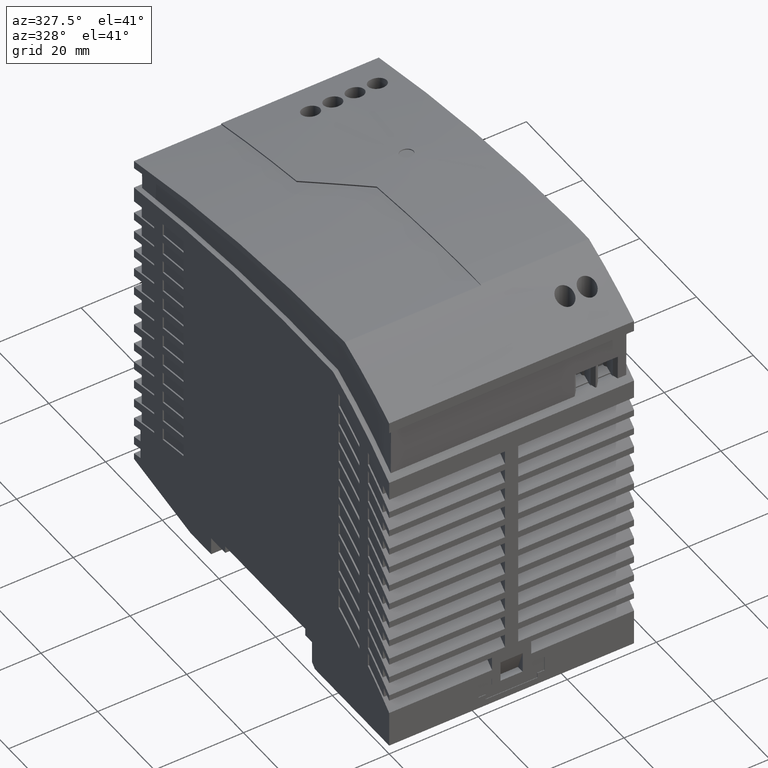
[diagram: clean part render]
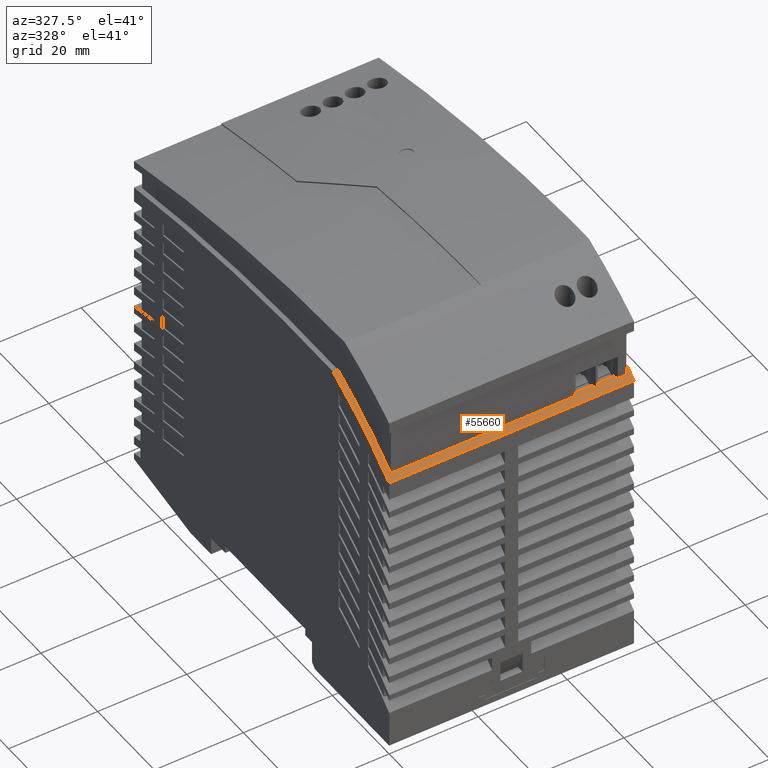
[diagram: same view with one face highlighted and labeled with its STEP entity id]
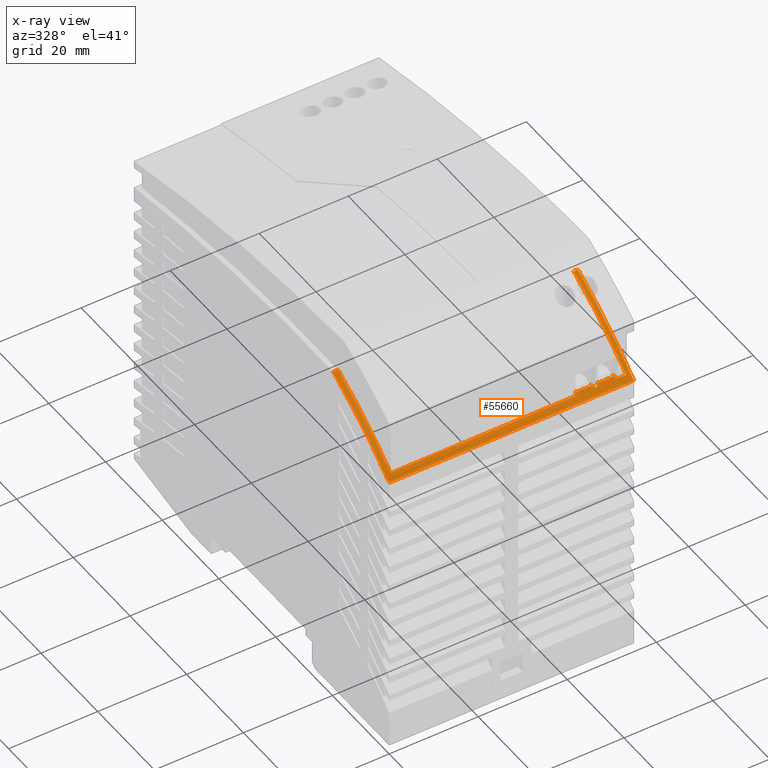
[diagram: x-ray of the same camera — body ghosted, the highlighted face saturated]
A machine part, auxiliary view. The second image highlights one B-rep face of the part: STEP entity #55660.
The next image is the same camera in x-ray: the body ghosted, the highlighted face saturated — about 0% of this face is hidden behind the body in this view.
In plain terms, the highlighted cylindrical surface (partial cylindrical patch) has radius 98.55 mm, axis along (1, 0, 0).
Its self-contained STEP definition (entity closure, byte-faithful):
#19180=CARTESIAN_POINT('',(19.7066423710768,-8.36763282685864,-54.));
#19190=DIRECTION('',(0.,0.,1.));
#19200=DIRECTION('',(-0.455955103889732,0.890002777095051,0.));
#19210=AXIS2_PLACEMENT_3D('',#19180,#19190,#19200);
#19220=CIRCLE('',#19210,98.55);
#19230=CARTESIAN_POINT('',(-25.2277331172548,79.3421408558594,-54.));
#19240=VERTEX_POINT('',#19230);
#19250=CARTESIAN_POINT('',(-45.0015236073532,65.9624132898226,-54.));
#19260=VERTEX_POINT('',#19250);
#19270=EDGE_CURVE('',#19240,#19260,#19220,.T.);
#40340=CARTESIAN_POINT('',(19.7066423710768,-8.36763282685864,1.));
#40350=DIRECTION('',(0.,0.,1.));
#40360=DIRECTION('',(-0.455955103889732,0.890002777095051,0.));
#40370=AXIS2_PLACEMENT_3D('',#40340,#40350,#40360);
#40380=CIRCLE('',#40370,98.55);
#40390=CARTESIAN_POINT('',(-25.2277331172548,79.3421408558594,1.));
#40400=VERTEX_POINT('',#40390);
#40410=CARTESIAN_POINT('',(-45.0015236073532,65.9624132898226,1.));
#40420=VERTEX_POINT('',#40410);
#40430=EDGE_CURVE('',#40400,#40420,#40380,.T.);
#54110=CARTESIAN_POINT('',(19.7066423710768,-8.36763282685864,-54.));
#54120=DIRECTION('',(0.,0.,1.));
#54130=DIRECTION('',(-0.455955103889732,0.890002777095051,0.));
#54140=AXIS2_PLACEMENT_3D('',#54110,#54120,#54130);
#54150=CYLINDRICAL_SURFACE('',#54140,98.55);
#54160=ORIENTED_EDGE('',*,*,#19270,.T.);
#54170=CARTESIAN_POINT('',(-25.2277331172548,79.3421408558593,-54.));
#54180=DIRECTION('',(0.,0.,1.));
#54190=VECTOR('',#54180,1.);
#54200=LINE('',#54170,#54190);
#54210=CARTESIAN_POINT('',(-25.2277331172552,79.3421408558592,
-52.8866936822561));
#54220=VERTEX_POINT('',#54210);
#54230=EDGE_CURVE('',#19240,#54220,#54200,.T.);
#54240=ORIENTED_EDGE('',*,*,#54230,.F.);
#54250=CARTESIAN_POINT('',(19.7066423710768,-8.36763282685864,
-52.8866936822561));
#54260=DIRECTION('',(0.,0.,1.));
#54270=DIRECTION('',(-0.455955103889732,0.890002777095051,0.));
#54280=AXIS2_PLACEMENT_3D('',#54250,#54260,#54270);
#54290=CIRCLE('',#54280,98.55);
#54300=CARTESIAN_POINT('',(-43.8004748452349,66.9911660149067,
-52.8866936822561));
#54310=VERTEX_POINT('',#54300);
#54320=EDGE_CURVE('',#54220,#54310,#54290,.T.);
#54330=ORIENTED_EDGE('',*,*,#54320,.F.);
#54340=CARTESIAN_POINT('',(-43.8004748452349,66.9911660149067,-54.));
#54350=DIRECTION('',(0.,0.,1.));
#54360=VECTOR('',#54350,1.);
#54370=LINE('',#54340,#54360);
#54380=CARTESIAN_POINT('',(-43.8004748452349,66.9911660149067,
-11.5706291168495));
#54390=VERTEX_POINT('',#54380);
#54400=EDGE_CURVE('',#54310,#54390,#54370,.T.);
#54410=ORIENTED_EDGE('',*,*,#54400,.F.);
#54420=CARTESIAN_POINT('',(19.7066423710768,-8.36763282685866,
51.2764487098305));
#54430=DIRECTION('',(-0.707079856727031,-0.00617059242716549,
0.707106781186533));
#54440=DIRECTION('',(-0.707079856727001,-0.00617059242716521,
-0.707106781186563));
#54450=AXIS2_PLACEMENT_3D('',#54420,#54430,#54440);
#54460=ELLIPSE('',#54450,139.370746571871,98.55);
#54470=CARTESIAN_POINT('',(-43.1098514853357,67.5678042205917,-10.875));
#54480=VERTEX_POINT('',#54470);
#54490=EDGE_CURVE('',#54480,#54390,#54460,.T.);
#54500=ORIENTED_EDGE('',*,*,#54490,.T.);
#54510=CARTESIAN_POINT('',(19.7066423710768,-8.36763282685866,-10.875));
#54520=DIRECTION('',(0.,0.,1.));
#54530=DIRECTION('',(-0.455955103889732,0.890002777095051,0.));
#54540=AXIS2_PLACEMENT_3D('',#54510,#54520,#54530);
#54550=CIRCLE('',#54540,98.55);
#54560=CARTESIAN_POINT('',(-43.3040822067639,67.4067103783154,-10.875));
#54570=VERTEX_POINT('',#54560);
#54580=EDGE_CURVE('',#54480,#54570,#54550,.T.);
#54590=ORIENTED_EDGE('',*,*,#54580,.F.);
#54600=CARTESIAN_POINT('',(-43.3040822067639,67.4067103783154,-43.975));
#54610=DIRECTION('',(0.,0.,1.));
#54620=VECTOR('',#54610,1.);
#54630=LINE('',#54600,#54620);
#54640=CARTESIAN_POINT('',(-43.3040822067639,67.4067103783154,
-7.57499999999997));
#54650=VERTEX_POINT('',#54640);
#54660=EDGE_CURVE('',#54570,#54650,#54630,.T.);
#54670=ORIENTED_EDGE('',*,*,#54660,.F.);
#54680=CARTESIAN_POINT('',(19.7066423710768,-8.36763282685866,
-7.57499999999997));
#54690=DIRECTION('',(0.,0.,1.));
#54700=DIRECTION('',(-0.455955103889732,0.890002777095051,0.));
#54710=AXIS2_PLACEMENT_3D('',#54680,#54690,#54700);
#54720=CIRCLE('',#54710,98.55);
#54730=CARTESIAN_POINT('',(-43.1098514853357,67.5678042205917,
-7.57499999999995));
#54740=VERTEX_POINT('',#54730);
#54750=EDGE_CURVE('',#54740,#54650,#54720,.T.);
#54760=ORIENTED_EDGE('',*,*,#54750,.T.);
#54770=CARTESIAN_POINT('',(19.7066423710768,-8.36763282685865,
-69.7264487098226));
#54780=DIRECTION('',(-0.707079856726986,-0.00617059242716332,
-0.707106781186578));
#54790=DIRECTION('',(0.707079856727046,0.00617059242716389,
-0.707106781186517));
#54800=AXIS2_PLACEMENT_3D('',#54770,#54780,#54790);
#54810=ELLIPSE('',#54800,139.370746571863,98.55);
#54820=CARTESIAN_POINT('',(-43.8004748452349,66.9911660149067,
-6.87937088315054));
#54830=VERTEX_POINT('',#54820);
#54840=EDGE_CURVE('',#54830,#54740,#54810,.T.);
#54850=ORIENTED_EDGE('',*,*,#54840,.T.);
#54860=CARTESIAN_POINT('',(-43.8004748452349,66.9911660149067,-54.));
#54870=DIRECTION('',(0.,0.,1.));
#54880=VECTOR('',#54870,1.);
#54890=LINE('',#54860,#54880);
#54900=CARTESIAN_POINT('',(-43.8004748452349,66.9911660149067,
-6.59562911684952));
#54910=VERTEX_POINT('',#54900);
#54920=EDGE_CURVE('',#54830,#54910,#54890,.T.);
#54930=ORIENTED_EDGE('',*,*,#54920,.F.);
#54940=CARTESIAN_POINT('',(19.7066423710768,-8.36763282685865,
56.2514487098299));
#54950=DIRECTION('',(-0.707079856727027,-0.00617059242716455,
0.707106781186536));
#54960=DIRECTION('',(-0.707079856727005,-0.00617059242716423,
-0.707106781186559));
#54970=AXIS2_PLACEMENT_3D('',#54940,#54950,#54960);
#54980=ELLIPSE('',#54970,139.370746571871,98.55);
#54990=CARTESIAN_POINT('',(-43.1098514853357,67.5678042205917,-5.9));
#55000=VERTEX_POINT('',#54990);
#55010=EDGE_CURVE('',#55000,#54910,#54980,.T.);
#55020=ORIENTED_EDGE('',*,*,#55010,.T.);
#55030=CARTESIAN_POINT('',(19.7066423710768,-8.36763282685865,-5.9));
#55040=DIRECTION('',(0.,0.,1.));
#55050=DIRECTION('',(-0.455955103889732,0.890002777095051,0.));
#55060=AXIS2_PLACEMENT_3D('',#55030,#55040,#55050);
#55070=CIRCLE('',#55060,98.55);
#55080=CARTESIAN_POINT('',(-43.3040822067639,67.4067103783154,-5.9));
#55090=VERTEX_POINT('',#55080);
#55100=EDGE_CURVE('',#55000,#55090,#55070,.T.);
#55110=ORIENTED_EDGE('',*,*,#55100,.F.);
#55120=CARTESIAN_POINT('',(-43.3040822067639,67.4067103783154,-54.));
#55130=DIRECTION('',(0.,0.,1.));
#55140=VECTOR('',#55130,1.);
#55150=LINE('',#55120,#55140);
#55160=CARTESIAN_POINT('',(-43.3040822067639,67.4067103783154,-2.6));
#55170=VERTEX_POINT('',#55160);
#55180=EDGE_CURVE('',#55090,#55170,#55150,.T.);
#55190=ORIENTED_EDGE('',*,*,#55180,.F.);
#55200=CARTESIAN_POINT('',(19.7066423710768,-8.36763282685865,-2.6));
#55210=DIRECTION('',(0.,0.,1.));
#55220=DIRECTION('',(-0.455955103889732,0.890002777095051,0.));
#55230=AXIS2_PLACEMENT_3D('',#55200,#55210,#55220);
#55240=CIRCLE('',#55230,98.55);
#55250=CARTESIAN_POINT('',(-43.1098514853357,67.5678042205917,-2.6));
#55260=VERTEX_POINT('',#55250);
#55270=EDGE_CURVE('',#55260,#55170,#55240,.T.);
#55280=ORIENTED_EDGE('',*,*,#55270,.T.);
#55290=CARTESIAN_POINT('',(19.7066423710768,-8.36763282685865,
-64.7514487098303));
#55300=DIRECTION('',(-0.707079856727031,-0.00617059242716584,
-0.707106781186533));
#55310=DIRECTION('',(0.707079856727002,0.00617059242716562,
-0.707106781186562));
#55320=AXIS2_PLACEMENT_3D('',#55290,#55300,#55310);
#55330=ELLIPSE('',#55320,139.370746571871,98.55);
#55340=CARTESIAN_POINT('',(-43.8004748452349,66.9911660149066,
-1.90437088315046));
#55350=VERTEX_POINT('',#55340);
#55360=EDGE_CURVE('',#55350,#55260,#55330,.T.);
#55370=ORIENTED_EDGE('',*,*,#55360,.T.);
#55380=CARTESIAN_POINT('',(-43.8004748452349,66.9911660149067,-54.));
#55390=DIRECTION('',(0.,0.,1.));
#55400=VECTOR('',#55390,1.);
#55410=LINE('',#55380,#55400);
#55420=CARTESIAN_POINT('',(-43.8004748452349,66.9911660149067,0.));
#55430=VERTEX_POINT('',#55420);
#55440=EDGE_CURVE('',#55350,#55430,#55410,.T.);
#55450=ORIENTED_EDGE('',*,*,#55440,.F.);
#55460=CARTESIAN_POINT('',(19.7066423710768,-8.36763282685864,0.));
#55470=DIRECTION('',(0.,0.,1.));
#55480=DIRECTION('',(-0.455955103889732,0.890002777095051,0.));
#55490=AXIS2_PLACEMENT_3D('',#55460,#55470,#55480);
#55500=CIRCLE('',#55490,98.55);
#55510=CARTESIAN_POINT('',(-25.2277331172552,79.3421408558592,0.));
#55520=VERTEX_POINT('',#55510);
#55530=EDGE_CURVE('',#55520,#55430,#55500,.T.);
#55540=ORIENTED_EDGE('',*,*,#55530,.T.);
#55550=EDGE_CURVE('',#55520,#40400,#54200,.T.);
#55560=ORIENTED_EDGE('',*,*,#55550,.F.);
#55570=ORIENTED_EDGE('',*,*,#40430,.F.);
#55580=CARTESIAN_POINT('',(-45.0015236073532,65.9624132898226,-54.));
#55590=DIRECTION('',(0.,0.,1.));
#55600=VECTOR('',#55590,1.);
#55610=LINE('',#55580,#55600);
#55620=EDGE_CURVE('',#19260,#40420,#55610,.T.);
#55630=ORIENTED_EDGE('',*,*,#55620,.T.);
#55640=EDGE_LOOP('',(#55630,#55570,#55560,#55540,#55450,#55370,#55280,
#55190,#55110,#55020,#54930,#54850,#54760,#54670,#54590,#54500,#54410,
#54330,#54240,#54160));
#55650=FACE_OUTER_BOUND('',#55640,.T.);
#55660=ADVANCED_FACE('',(#55650),#54150,.T.);